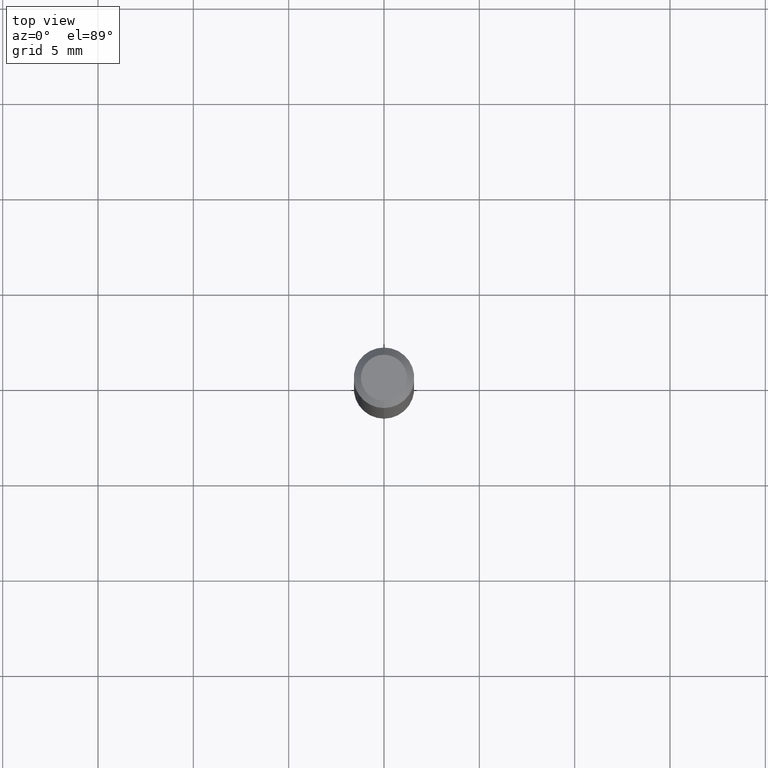
[diagram: clean part render]
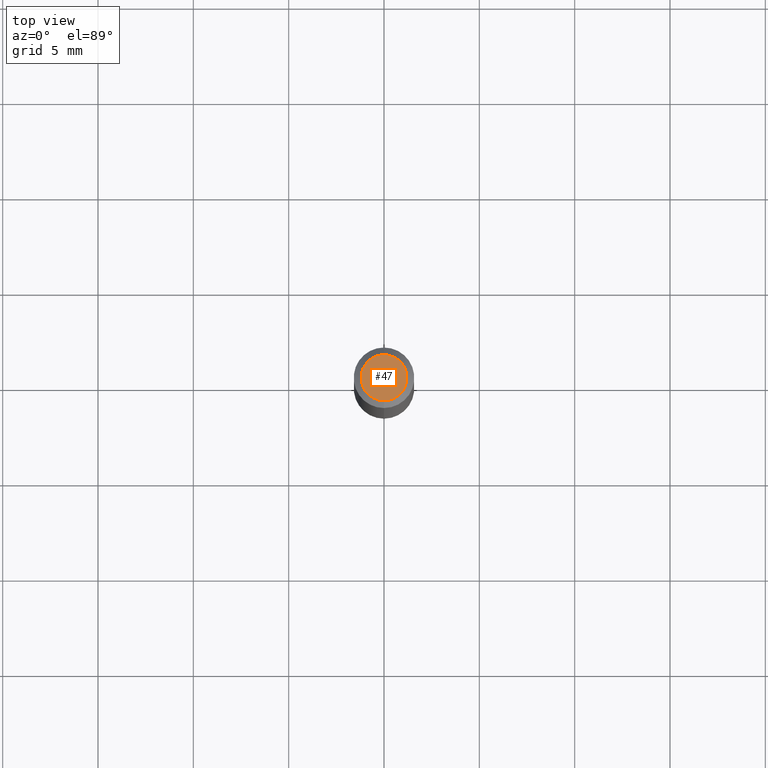
[diagram: same view with one face highlighted and labeled with its STEP entity id]
A machine part, top view. The second image highlights one B-rep face of the part: STEP entity #47.
In plain terms, the highlighted planar face has unit normal (0, -0, -1).
Its self-contained STEP definition (entity closure, byte-faithful):
#46 = EDGE_CURVE ( 'NONE', #147, #191, #289, .T. ) ;
#47 = ADVANCED_FACE ( 'NONE', ( #357 ), #240, .F. ) ;
#64 = AXIS2_PLACEMENT_3D ( 'NONE', #451, #430, #387 ) ;
#69 = CARTESIAN_POINT ( 'NONE',  ( 3.840629472727447874E-16, 0.04749999999999999362, -4.939923113072091241E-16 ) ) ;
#70 = ORIENTED_EDGE ( 'NONE', *, *, #200, .T. ) ;
#71 = AXIS2_PLACEMENT_3D ( 'NONE', #199, #438, #267 ) ;
#147 = VERTEX_POINT ( 'NONE', #206 ) ;
#163 = DIRECTION ( 'NONE',  ( -2.445480848549432183E-29, 3.491464093492065747E-15, 1.000000000000000000 ) ) ;
#191 = VERTEX_POINT ( 'NONE', #69 ) ;
#199 = CARTESIAN_POINT ( 'NONE',  ( 3.316907271900976096E-16, 0.04749999999999999362, -3.299184278740410920E-16 ) ) ;
#200 = EDGE_CURVE ( 'NONE', #191, #147, #334, .T. ) ;
#206 = CARTESIAN_POINT ( 'NONE',  ( -3.773273898774340269E-16, -0.04749999999999999362, -1.623032224254629057E-16 ) ) ;
#240 = PLANE ( 'NONE',  #71 ) ;
#267 = DIRECTION ( 'NONE',  ( 6.982962677686265922E-15, 1.000000000000000000, -3.491464093492066142E-15 ) ) ;
#289 = CIRCLE ( 'NONE', #345, 0.04749999999999999362 ) ;
#306 = CARTESIAN_POINT ( 'NONE',  ( 8.024790793658886840E-45, -1.145716145373417508E-30, -3.281477668663360149E-16 ) ) ;
#334 = CIRCLE ( 'NONE', #64, 0.04749999999999999362 ) ;
#345 = AXIS2_PLACEMENT_3D ( 'NONE', #306, #163, #401 ) ;
#357 = FACE_OUTER_BOUND ( 'NONE', #431, .T. ) ;
#378 = ORIENTED_EDGE ( 'NONE', *, *, #46, .T. ) ;
#387 = DIRECTION ( 'NONE',  ( -6.982962677686266711E-15, -1.000000000000000000, 3.491464093492065747E-15 ) ) ;
#401 = DIRECTION ( 'NONE',  ( -6.982962677686266711E-15, -1.000000000000000000, 3.491464093492065747E-15 ) ) ;
#430 = DIRECTION ( 'NONE',  ( -2.445480848549432183E-29, 3.491464093492065747E-15, 1.000000000000000000 ) ) ;
#431 = EDGE_LOOP ( 'NONE', ( #70, #378 ) ) ;
#438 = DIRECTION ( 'NONE',  ( 2.445480848549431342E-29, -3.491464093492066142E-15, -1.000000000000000000 ) ) ;
#451 = CARTESIAN_POINT ( 'NONE',  ( 8.024790793658886840E-45, -1.145716145373417508E-30, -3.281477668663360149E-16 ) ) ;